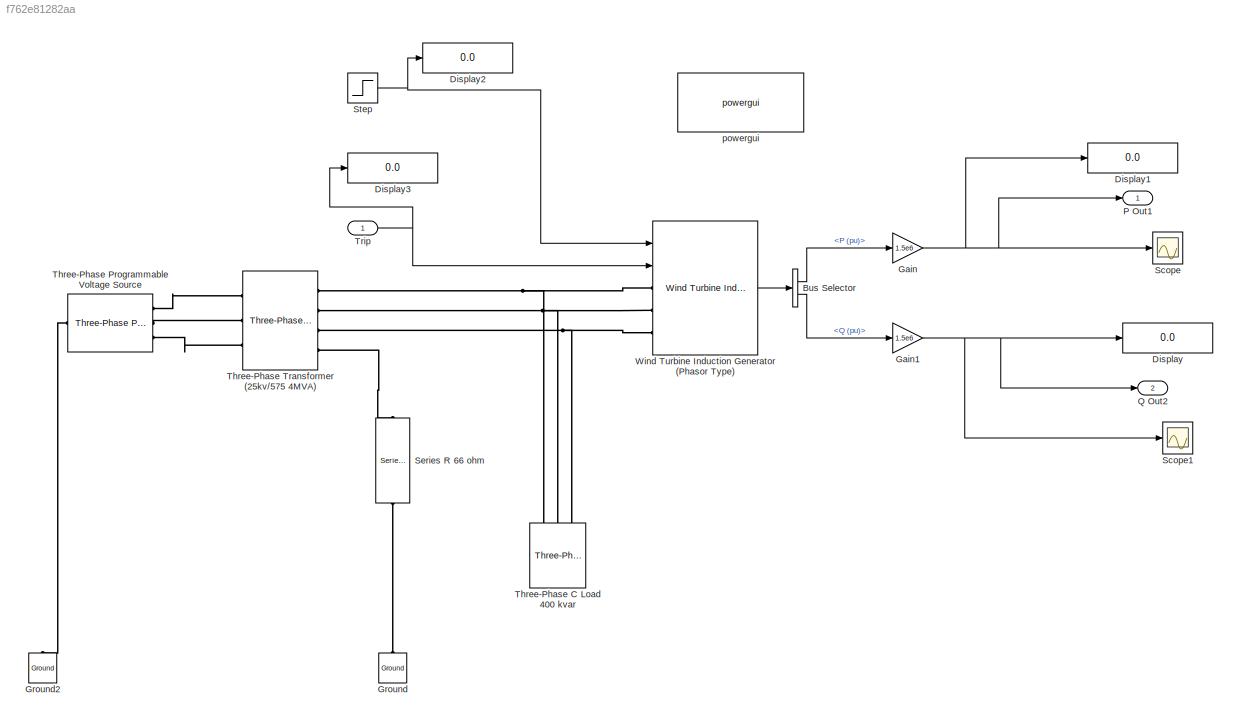
MODEL slx_f762e81282aa
KIND model
BLOCK [BusSelector] Bus Selector
  OutputSignals = P (pu),Q (pu)
  Ports = [1, 2]
BLOCK [Display] Display
  Decimation = 1
  Ports = [1]
BLOCK [Display] Display1
  Decimation = 1
  Ports = [1]
BLOCK [Display] Display2
  Decimation = 1
  Ports = [1]
BLOCK [Display] Display3
  Decimation = 1
  Ports = [1]
BLOCK [Gain] Gain
  Gain = 1.5e6
  OutDataTypeStr = Inherit: Inherit via internal rule
  ParamDataTypeStr = Inherit: Inherit via internal rule
  SaturateOnIntegerOverflow = off
BLOCK [Gain] Gain1
  Gain = 1.5e6
  OutDataTypeStr = Inherit: Inherit via internal rule
  ParamDataTypeStr = Inherit: Inherit via internal rule
  SaturateOnIntegerOverflow = off
BLOCK [Reference] Ground  REF=powerlib/Elements/Ground
  LConnTagsString = a
  Ports = [0, 0, 0, 0, 0, 1]
  SourceBlock = powerlib/Elements/Ground
  SourceType = Ground
BLOCK [Reference] Ground2  REF=powerlib/Elements/Ground
  LConnTagsString = a
  Ports = [0, 0, 0, 0, 0, 1]
  SourceBlock = powerlib/Elements/Ground
  SourceType = Ground
BLOCK [Outport] P Out1
  IconDisplay = Port number
BLOCK [Outport] Q Out2
  IconDisplay = Port number
  Port = 2
BLOCK [Scope] Scope
  Floating = off
  MaxDataPoints = 10000
  NumInputPorts = 1
  Ports = [1]
  ShowLegends = off
  TimeRange = 30
  YMax = 1
  YMin = -1
BLOCK [Scope] Scope1
  Floating = off
  LimitDataPoints = off
  NumInputPorts = 1
  Ports = [1]
  SaveName = ScopeData1
  ShowLegends = off
  TimeRange = 30
  YMax = 1
  YMin = -1
BLOCK [Reference] Series R 66 ohm    REF=powerlib/Elements/Series RLC Branch
  BranchType = R
  Capacitance = 1e-6
  Inductance = 1e-3
  InitialCurrent = 0
  InitialVoltage = 0
  LConnTagsString = __new0
  Measurements = None
  Ports = [0, 0, 0, 0, 0, 1, 1]
  RConnTagsString = __new0
  Resistance = 66
  SetiL0 = off
  Setx0 = off
  SourceBlock = powerlib/Elements/Series RLC Branch
  SourceType = Series RLC Branch
BLOCK [Step] Step
  After = 8
  SampleTime = 0
BLOCK [Reference] Three-Phase C Load 400 kvar  REF=powerlib/Elements/Three-Phase
Series RLC Load
  ActivePower = 0
  AttributesFormatString = \n
  CapacitivePower = 400e3
  Configuration = Delta
  InductivePower = 0
  LConnTagsString = A|B|C
  LoadType = constant Z
  Measurements = Branch voltages
  NominalFrequency = 60
  NominalVoltage = 575
  Ports = [0, 0, 0, 0, 0, 3]
  SourceBlock = powerlib/Elements/Three-Phase\nSeries RLC Load
  SourceType = Three-Phase Series RLC Load
BLOCK [Reference] Three-Phase Programmable Voltage Source  REF=powerlib/Electrical
Sources/Three-Phase
Programmable
Voltage Source
  Amplitudes = [1 0.8 1.2 1.0]
  BusType = swing
  HarmonicA = [3 0.2 -25 0]
  HarmonicB = [2 0.15 35 2]
  HarmonicGeneration = off
  Ports = [0, 0, 0, 0, 0, 1, 3]
  PositiveSequence = [100  0 60]
  Pref = 0
  Qmax = inf
  Qmin = -inf
  Qref = 0
  SourceBlock = powerlib/Electrical\nSources/Three-Phase\nProgrammable\nVoltage Source
  SourceType = Three-Phase Programmable Voltage Source
  TimeValues = [0 0.1 0.15 0.2]
  Timing = [0.05  3]
  VariationEntity = None
  VariationFrequency = 2
  VariationMagnitude = 0.3
  VariationPhaseA = off
  VariationRate = 10
  VariationStep = 0.5
  VariationTiming = [1 2]
  VariationType = Table of time-amplitude pairs
  VariationTypeAlt = Step
BLOCK [Reference] Three-Phase Transformer (25kv//575 4MVA)  REF=powerlib/Elements/Three-Phase
Transformer
(Two Windings)
  BreakLoop = off
  DataFile = 'hysteresis'
  DataType = off
  Hysteresis = off
  InitialFluxes = [ 0.8 , -0.8 , 0.7 ]
  Lm = inf
  Measurements = None
  MoreParameters = off
  NominalPower = [ 4e6 , 60 ]
  Ports = [0, 0, 0, 0, 0, 3, 4]
  Rm = 500
  Saturation = [ 0,0 ; 0.0024,1.2 ; 1.0,1.52 ]
  SetInitialFlux = off
  SetSaturation = off
  SourceBlock = powerlib/Elements/Three-Phase\nTransformer\n(Two Windings)
  SourceType = Three-Phase Transformer (Two Windings)
  TransfoNumber = 1
  UNITS = pu
  Winding1 = [ 25e3 , 0.025/30 , 0.025 ]
  Winding1Connection = Yg
  Winding2 = [ 575 , 0.025/30 , 0.025 ]
  Winding2Connection = Yn
BLOCK [Inport] Trip
  IconDisplay = Port number
BLOCK [Reference] Wind Turbine Induction Generator (Phasor Type)  REF=re_lib/Wind Generation/Wind Turbine
Induction Generator
(Phasor Type)
  DisplayTurbChar = off
  ExternalTm = off
  K_pitch_gain = [5 25]
  Lm = 6.77
  P_wind_base = 1
  Pmec = 1.5e6
  Ports = [2, 1, 0, 0, 0, 3]
  ShowParameters = Turbine data
  SourceBlock = re_lib/Wind Generation/Wind Turbine\nInduction Generator\n(Phasor Type)
  SourceType = Wind Turbine Induction Generator (Phasor Type)
  init = [ -0.01,0   0,0,0   0,0,0 ]
  mec = [5.04 0.01 3]
  nom = [1.5e3 575 60]
  pitch_angle = 0
  pitch_max = 45
  pitch_rate = 2
  rot = [ 0.004377 0.1791]
  speed_nom = 1
  sta = [ 0.004843 0.1248]
  wind_base = 12
BLOCK [Reference] powergui  REF=powerlib/powergui
  DisableRonSwitches = off
  DisableSnubberDevices = off
  DisableVfSwitches = off
  DisplayEquations = off
  DisplayStyle = 1
  EnableUseOfTLC = off
  ErrMax = 1e-4
  Frange = [0:2:500]
  FreqAxis = off
  FunctionMessages = off
  HookPort = off
  Interpol = off
  Iterations = 50
  MaxFrequency = 1000
  Pbase = 10e6
  Ports = []
  Priority = 1
  ResistiveCurrentMeasurement = off
  RestoreLinks = warning
  RmsSteady = 1
  SPID = off
  SampleTime = 50e-6
  ShowGrid = off
  SolverType = Tustin/Backward Euler (TBE)
  SourceBlock = powerlib/powergui
  SourceType = PSB option menu block
  StartTime = 0.0
  SwTol = 0
  Ts = 100
  UnitsV = V
  UnitsW = W
  UserDataPersistent = on
  Xlog = on
  Ylog = off
  ZoomFFT = off
  cycles = 1
  display = off
  echomessages = off
  frequency = 60
  frequencyindice = 60
  frequencyindicesteady = 1
  fundamental = 60
  methode = off
  save = off
  structure = 0
  variable = ZData
  x0status = blocks
LINE Bus Selector:1 -> Gain:1
LINE Bus Selector:2 -> Gain1:1
NET Gain1:1 -> Display:1, Q Out2:1, Scope1:1
NET Gain:1 -> Display1:1, P Out1:1, Scope:1
NET Step:1 -> Display2:1, Wind Turbine Induction Generator (Phasor Type):1
NET Trip:1 -> Display3:1, Wind Turbine Induction Generator (Phasor Type):2
LINE Wind Turbine Induction Generator (Phasor Type):1 -> Bus Selector:1
PLINE Ground2:LConn1 -- Three-Phase Programmable Voltage Source:LConn1
PLINE Ground:LConn1 -- Series R 66 ohm  :RConn1
PLINE Series R 66 ohm  :LConn1 -- Three-Phase Transformer (25kv//575 4MVA):RConn4
PNET net1: Three-Phase C Load 400 kvar:LConn1 -- Three-Phase Transformer (25kv//575 4MVA):RConn1 -- Wind Turbine Induction Generator (Phasor Type):LConn1
PNET net2: Three-Phase C Load 400 kvar:LConn2 -- Three-Phase Transformer (25kv//575 4MVA):RConn2 -- Wind Turbine Induction Generator (Phasor Type):LConn2
PNET net3: Three-Phase C Load 400 kvar:LConn3 -- Three-Phase Transformer (25kv//575 4MVA):RConn3 -- Wind Turbine Induction Generator (Phasor Type):LConn3
PLINE Three-Phase Programmable Voltage Source:RConn1 -- Three-Phase Transformer (25kv//575 4MVA):LConn1
PLINE Three-Phase Programmable Voltage Source:RConn2 -- Three-Phase Transformer (25kv//575 4MVA):LConn2
PLINE Three-Phase Programmable Voltage Source:RConn3 -- Three-Phase Transformer (25kv//575 4MVA):LConn3
note: NET lines group one-source signal fan-out (src -> all destinations, sorted); 1:1 wires keep LINE; PNET lines group multi-terminal physical nets as a canonical sorted terminal list (undirected conserving connections); 2-terminal nets keep the pairwise PLINE form
